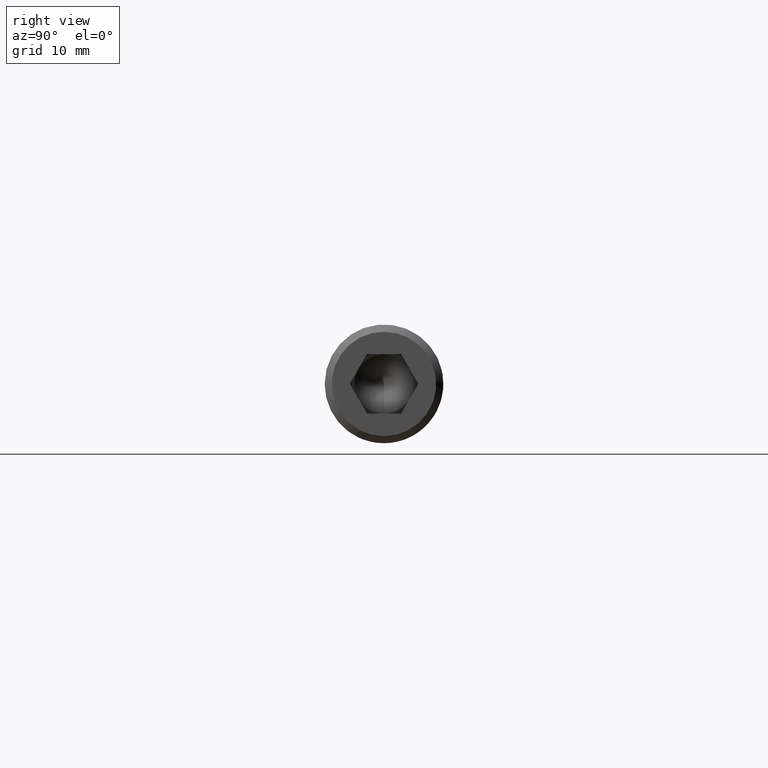
[diagram: clean part render]
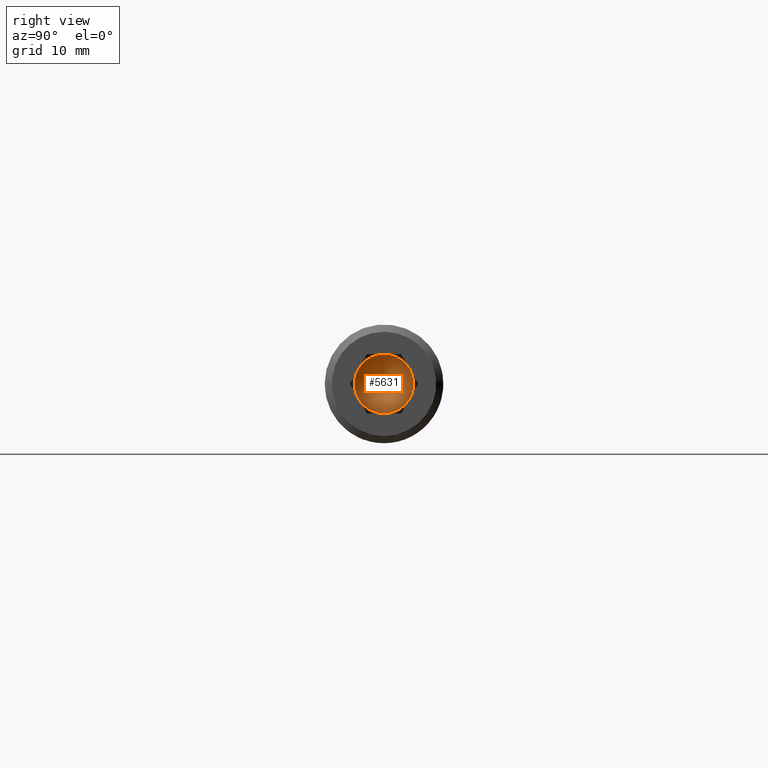
[diagram: same view with one face highlighted and labeled with its STEP entity id]
A machine part, right view. The second image highlights one B-rep face of the part: STEP entity #5631.
In plain terms, the highlighted conical surface has half-angle 59 deg.
Its self-contained STEP definition (entity closure, byte-faithful):
#242 = AXIS2_PLACEMENT_3D ( 'NONE', #16396, #2533, #12307 ) ;
#385 = CIRCLE ( 'NONE', #1062, 2.500000000000009800 ) ;
#552 = ORIENTED_EDGE ( 'NONE', *, *, #6263, .T. ) ;
#665 = FACE_OUTER_BOUND ( 'NONE', #17909, .T. ) ;
#1062 = AXIS2_PLACEMENT_3D ( 'NONE', #14027, #11290, #4320 ) ;
#1267 = DIRECTION ( 'NONE',  ( 1.000000000000000000, 0.0000000000000000000, 0.0000000000000000000 ) ) ;
#1285 = DIRECTION ( 'NONE',  ( 0.0000000000000000000, 0.0000000000000000000, -1.000000000000000000 ) ) ;
#1526 = AXIS2_PLACEMENT_3D ( 'NONE', #15951, #4938, #14499 ) ;
#1845 = EDGE_CURVE ( 'NONE', #2173, #9818, #3235, .T. ) ;
#1984 = CARTESIAN_POINT ( 'NONE',  ( 54.00000000000000000, -2.165063509461099900, -1.250000000000004000 ) ) ;
#2173 = VERTEX_POINT ( 'NONE', #13740 ) ;
#2201 = CIRCLE ( 'NONE', #3297, 2.500000000000009800 ) ;
#2533 = DIRECTION ( 'NONE',  ( 1.000000000000000000, 0.0000000000000000000, 0.0000000000000000000 ) ) ;
#2671 = DIRECTION ( 'NONE',  ( 0.0000000000000000000, 0.0000000000000000000, -1.000000000000000000 ) ) ;
#3235 = CIRCLE ( 'NONE', #242, 2.500000000000009800 ) ;
#3297 = AXIS2_PLACEMENT_3D ( 'NONE', #12379, #1267, #2671 ) ;
#3451 = EDGE_CURVE ( 'NONE', #6549, #5897, #385, .T. ) ;
#3529 = AXIS2_PLACEMENT_3D ( 'NONE', #16741, #16799, #1285 ) ;
#3991 = DIRECTION ( 'NONE',  ( 1.000000000000000000, 0.0000000000000000000, 0.0000000000000000000 ) ) ;
#4320 = DIRECTION ( 'NONE',  ( 0.0000000000000000000, 0.0000000000000000000, -1.000000000000000000 ) ) ;
#4866 = ORIENTED_EDGE ( 'NONE', *, *, #10870, .T. ) ;
#4938 = DIRECTION ( 'NONE',  ( 1.000000000000000000, -0.0000000000000000000, -3.202854871356336300E-016 ) ) ;
#5152 = CARTESIAN_POINT ( 'NONE',  ( 53.99999999999999300, 0.0000000000000000000, -1.469576158976821000E-015 ) ) ;
#5288 = CARTESIAN_POINT ( 'NONE',  ( 54.00000000000000000, 0.0000000000000000000, -2.802187570812999200E-015 ) ) ;
#5631 = ADVANCED_FACE ( 'NONE', ( #665 ), #16997, .F. ) ;
#5897 = VERTEX_POINT ( 'NONE', #12674 ) ;
#6263 = EDGE_CURVE ( 'NONE', #5897, #6960, #14595, .T. ) ;
#6549 = VERTEX_POINT ( 'NONE', #1984 ) ;
#6736 = DIRECTION ( 'NONE',  ( 0.0000000000000000000, 0.0000000000000000000, -1.000000000000000000 ) ) ;
#6960 = VERTEX_POINT ( 'NONE', #16242 ) ;
#7238 = ORIENTED_EDGE ( 'NONE', *, *, #8907, .T. ) ;
#7901 = DIRECTION ( 'NONE',  ( 1.000000000000000000, -0.0000000000000000000, -3.202854871356336300E-016 ) ) ;
#7971 = CARTESIAN_POINT ( 'NONE',  ( 53.99999999999999300, 0.0000000000000000000, 2.499999999999997300 ) ) ;
#8766 = VERTEX_POINT ( 'NONE', #9116 ) ;
#8907 = EDGE_CURVE ( 'NONE', #9818, #8766, #2201, .T. ) ;
#9116 = CARTESIAN_POINT ( 'NONE',  ( 53.99999999999999300, -2.165063509461095900, 1.249999999999997100 ) ) ;
#9818 = VERTEX_POINT ( 'NONE', #7971 ) ;
#10870 = EDGE_CURVE ( 'NONE', #8766, #6549, #18049, .T. ) ;
#10886 = DIRECTION ( 'NONE',  ( 0.0000000000000000000, 0.0000000000000000000, -1.000000000000000000 ) ) ;
#11290 = DIRECTION ( 'NONE',  ( 1.000000000000000000, 0.0000000000000000000, 0.0000000000000000000 ) ) ;
#11571 = ORIENTED_EDGE ( 'NONE', *, *, #1845, .T. ) ;
#12307 = DIRECTION ( 'NONE',  ( 0.0000000000000000000, 0.0000000000000000000, -1.000000000000000000 ) ) ;
#12379 = CARTESIAN_POINT ( 'NONE',  ( 54.00000000000000000, 0.0000000000000000000, -2.802187570812999200E-015 ) ) ;
#12421 = AXIS2_PLACEMENT_3D ( 'NONE', #5152, #7901, #6736 ) ;
#12483 = AXIS2_PLACEMENT_3D ( 'NONE', #5288, #3991, #10886 ) ;
#12674 = CARTESIAN_POINT ( 'NONE',  ( 53.99999999999999300, -3.755786496842889200E-016, -2.500000000000000000 ) ) ;
#13740 = CARTESIAN_POINT ( 'NONE',  ( 53.99999999999999300, 2.165063509461096400, 1.249999999999996400 ) ) ;
#14027 = CARTESIAN_POINT ( 'NONE',  ( 54.00000000000000000, 0.0000000000000000000, -2.802187570812999200E-015 ) ) ;
#14499 = DIRECTION ( 'NONE',  ( 0.0000000000000000000, 0.0000000000000000000, -1.000000000000000000 ) ) ;
#14595 = CIRCLE ( 'NONE', #12421, 2.499999999999998700 ) ;
#14674 = CIRCLE ( 'NONE', #12483, 2.500000000000009800 ) ;
#15951 = CARTESIAN_POINT ( 'NONE',  ( 53.99999999999999300, 0.0000000000000000000, -1.469576158976821000E-015 ) ) ;
#16151 = ORIENTED_EDGE ( 'NONE', *, *, #3451, .T. ) ;
#16242 = CARTESIAN_POINT ( 'NONE',  ( 53.99999999999999300, 2.165063509461095500, -1.250000000000001300 ) ) ;
#16358 = EDGE_CURVE ( 'NONE', #6960, #2173, #14674, .T. ) ;
#16396 = CARTESIAN_POINT ( 'NONE',  ( 54.00000000000000000, 0.0000000000000000000, -2.802187570812999200E-015 ) ) ;
#16741 = CARTESIAN_POINT ( 'NONE',  ( 54.00000000000000000, 0.0000000000000000000, -2.802187570812999200E-015 ) ) ;
#16799 = DIRECTION ( 'NONE',  ( 1.000000000000000000, 0.0000000000000000000, 0.0000000000000000000 ) ) ;
#16997 = CONICAL_SURFACE ( 'NONE', #1526, 2.499999999999998700, 1.029744258676648300 ) ;
#17666 = ORIENTED_EDGE ( 'NONE', *, *, #16358, .T. ) ;
#17909 = EDGE_LOOP ( 'NONE', ( #552, #17666, #11571, #7238, #4866, #16151 ) ) ;
#18049 = CIRCLE ( 'NONE', #3529, 2.500000000000009800 ) ;